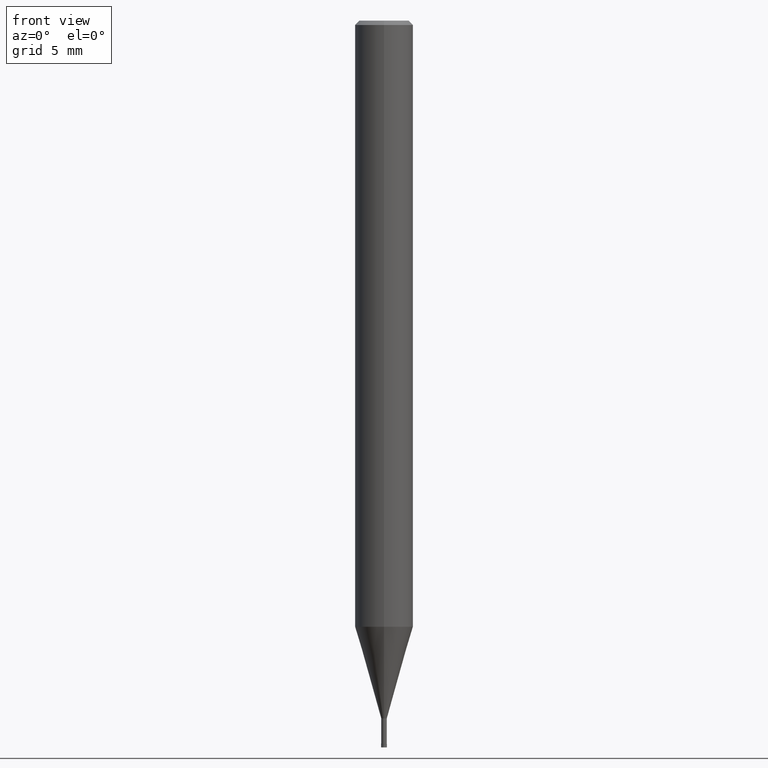
[diagram: clean part render]
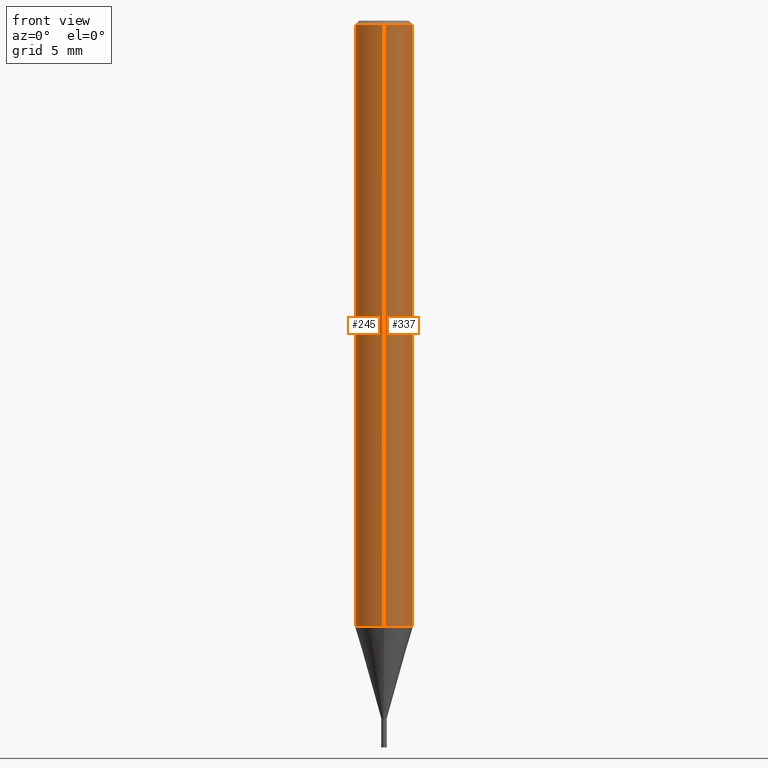
[diagram: same view with one multi-face feature highlighted, each face labeled with its STEP entity id]
A machine part, front view. The highlighted faces form ONE feature: a constant-radius fillet chain: 2 tangent blend faces with common blend radius 2 mm. The faces share edges in the B-rep.
Their STEP definitions:
[1] entity #337 (Cylinder):
#141=VERTEX_POINT('',#376);
#145=VERTEX_POINT('',#381);
#177=EDGE_CURVE('',#141,#145,#416,.T.);
#213=VERTEX_POINT('',#452);
#229=EDGE_CURVE('',#289,#141,#471,.T.);
#289=VERTEX_POINT('',#545);
#337=ADVANCED_FACE('',(#600),#601,.T.);
#339=EDGE_CURVE('',#289,#213,#603,.T.);
#341=EDGE_CURVE('',#145,#213,#605,.T.);
#376=CARTESIAN_POINT('',(0.0,2.0,-41.686));
#381=CARTESIAN_POINT('',(2.44921270764475E-016,-2.0,-41.686));
#416=CIRCLE('',#686,2.0);
#452=CARTESIAN_POINT('',(2.44921270764475E-016,-2.0,-0.289999999999999));
#471=LINE('',#760,#761);
#545=CARTESIAN_POINT('',(0.0,2.0,-0.289999999999999));
#600=FACE_OUTER_BOUND('',#914,.T.);
#601=CYLINDRICAL_SURFACE('',#915,2.0);
#603=CIRCLE('',#918,2.0);
#605=LINE('',#921,#922);
#686=AXIS2_PLACEMENT_3D('',#998,#999,#1000);
#760=CARTESIAN_POINT('',(-2.44921270764475E-016,2.0,-20.988));
#761=VECTOR('',#1046,1.0);
#914=EDGE_LOOP('',(#1233,#1234,#1235,#1236));
#915=AXIS2_PLACEMENT_3D('',#1237,#1238,#1239);
#918=AXIS2_PLACEMENT_3D('',#1240,#1241,#1242);
#921=CARTESIAN_POINT('',(2.44921270764475E-016,-2.0,-20.988));
#922=VECTOR('',#1243,1.0);
#998=CARTESIAN_POINT('',(0.0,0.0,-41.686));
#999=DIRECTION('',(0.0,0.0,-1.0));
#1000=DIRECTION('',(0.0,1.0,0.0));
#1046=DIRECTION('',(0.0,0.0,-1.0));
#1233=ORIENTED_EDGE('',*,*,#229,.F.);
#1234=ORIENTED_EDGE('',*,*,#339,.T.);
#1235=ORIENTED_EDGE('',*,*,#341,.F.);
#1236=ORIENTED_EDGE('',*,*,#177,.F.);
#1237=CARTESIAN_POINT('',(0.0,0.0,-20.988));
#1238=DIRECTION('',(-0.0,-0.0,1.0));
#1239=DIRECTION('',(0.0,1.0,0.0));
#1240=CARTESIAN_POINT('',(0.0,0.0,-0.289999999999999));
#1241=DIRECTION('',(0.0,0.0,-1.0));
#1242=DIRECTION('',(0.0,1.0,0.0));
#1243=DIRECTION('',(-0.0,-0.0,1.0));
[2] entity #245 (Cylinder):
#141=VERTEX_POINT('',#376);
#145=VERTEX_POINT('',#381);
#147=EDGE_CURVE('',#145,#141,#383,.T.);
#165=EDGE_CURVE('',#213,#289,#403,.T.);
#213=VERTEX_POINT('',#452);
#229=EDGE_CURVE('',#289,#141,#471,.T.);
#245=ADVANCED_FACE('',(#488),#489,.T.);
#289=VERTEX_POINT('',#545);
#341=EDGE_CURVE('',#145,#213,#605,.T.);
#376=CARTESIAN_POINT('',(0.0,2.0,-41.686));
#381=CARTESIAN_POINT('',(2.44921270764475E-016,-2.0,-41.686));
#383=CIRCLE('',#641,2.0);
#403=CIRCLE('',#669,2.0);
#452=CARTESIAN_POINT('',(2.44921270764475E-016,-2.0,-0.289999999999999));
#471=LINE('',#760,#761);
#488=FACE_OUTER_BOUND('',#784,.T.);
#489=CYLINDRICAL_SURFACE('',#785,2.0);
#545=CARTESIAN_POINT('',(0.0,2.0,-0.289999999999999));
#605=LINE('',#921,#922);
#641=AXIS2_PLACEMENT_3D('',#953,#954,#955);
#669=AXIS2_PLACEMENT_3D('',#978,#979,#980);
#760=CARTESIAN_POINT('',(-2.44921270764475E-016,2.0,-20.988));
#761=VECTOR('',#1046,1.0);
#784=EDGE_LOOP('',(#1064,#1065,#1066,#1067));
#785=AXIS2_PLACEMENT_3D('',#1068,#1069,#1070);
#921=CARTESIAN_POINT('',(2.44921270764475E-016,-2.0,-20.988));
#922=VECTOR('',#1243,1.0);
#953=CARTESIAN_POINT('',(0.0,0.0,-41.686));
#954=DIRECTION('',(0.0,0.0,-1.0));
#955=DIRECTION('',(0.0,1.0,0.0));
#978=CARTESIAN_POINT('',(0.0,0.0,-0.289999999999999));
#979=DIRECTION('',(0.0,0.0,-1.0));
#980=DIRECTION('',(0.0,1.0,0.0));
#1046=DIRECTION('',(0.0,0.0,-1.0));
#1064=ORIENTED_EDGE('',*,*,#229,.T.);
#1065=ORIENTED_EDGE('',*,*,#147,.F.);
#1066=ORIENTED_EDGE('',*,*,#341,.T.);
#1067=ORIENTED_EDGE('',*,*,#165,.T.);
#1068=CARTESIAN_POINT('',(0.0,0.0,-20.988));
#1069=DIRECTION('',(-0.0,-0.0,1.0));
#1070=DIRECTION('',(0.0,1.0,0.0));
#1243=DIRECTION('',(-0.0,-0.0,1.0));